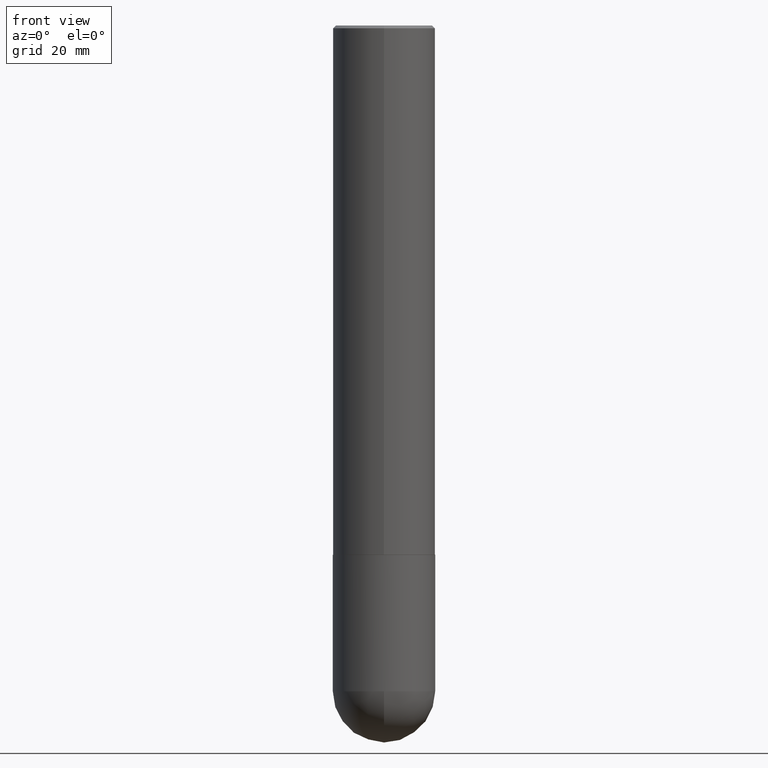
[diagram: clean part render]
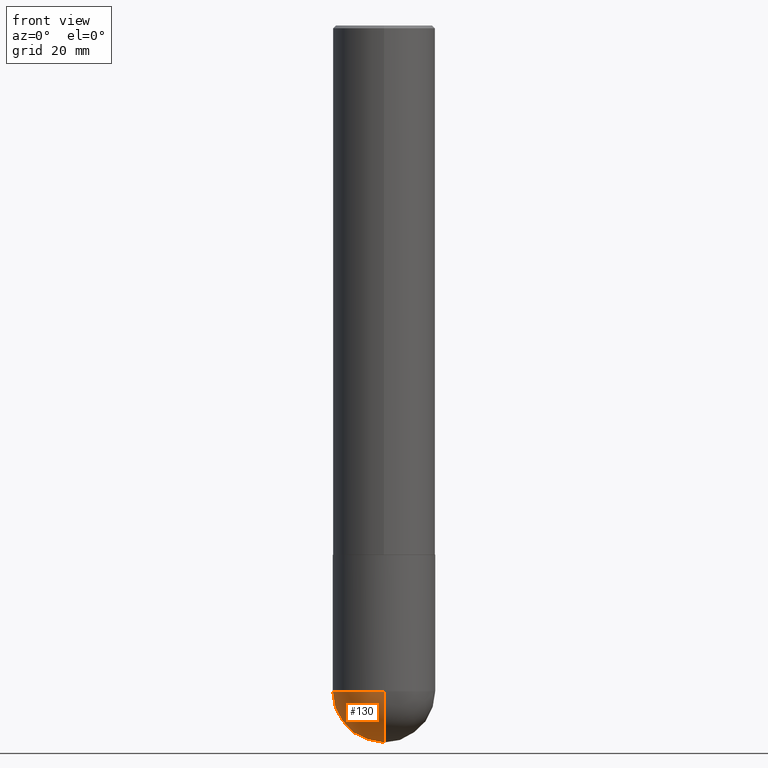
[diagram: same view with one face highlighted and labeled with its STEP entity id]
A machine part, front view. The second image highlights one B-rep face of the part: STEP entity #130.
In plain terms, the highlighted spherical surface has radius 9.525 mm.
Its self-contained STEP definition (entity closure, byte-faithful):
#5 = CARTESIAN_POINT ( 'NONE',  ( 1.159054065223865578E-28, -1.749515389500038536E-14, -4.875000000000000000 ) ) ;
#13 = FACE_OUTER_BOUND ( 'NONE', #398, .T. ) ;
#14 = CIRCLE ( 'NONE', #156, 0.3750000000000001110 ) ;
#35 = DIRECTION ( 'NONE',  ( 6.982962677686265922E-15, 1.000000000000000000, 0.000000000000000000 ) ) ;
#44 = AXIS2_PLACEMENT_3D ( 'NONE', #5, #225, #261 ) ;
#51 = CARTESIAN_POINT ( 'NONE',  ( 1.192166043015254091E-28, -1.702097152686033664E-14, -4.875000000000000000 ) ) ;
#58 = EDGE_CURVE ( 'NONE', #69, #265, #259, .T. ) ;
#63 = VERTEX_POINT ( 'NONE', #407 ) ;
#67 = SPHERICAL_SURFACE ( 'NONE', #278, 0.3750000000000001110 ) ;
#69 = VERTEX_POINT ( 'NONE', #255 ) ;
#75 = ORIENTED_EDGE ( 'NONE', *, *, #302, .F. ) ;
#81 = DIRECTION ( 'NONE',  ( -2.445468806185136597E-29, 3.491481338843145583E-15, 1.000000000000000000 ) ) ;
#96 = ORIENTED_EDGE ( 'NONE', *, *, #173, .T. ) ;
#104 = CARTESIAN_POINT ( 'NONE',  ( 1.159054065223865578E-28, -1.749515389500038536E-14, -4.875000000000000000 ) ) ;
#120 = CARTESIAN_POINT ( 'NONE',  ( -2.664535259100258157E-15, -0.3750000000000173195, -4.874999999999999112 ) ) ;
#130 = ADVANCED_FACE ( 'NONE', ( #13 ), #67, .T. ) ;
#155 = CARTESIAN_POINT ( 'NONE',  ( 1.159054065223865578E-28, -1.749515389500038536E-14, -4.875000000000000000 ) ) ;
#156 = AXIS2_PLACEMENT_3D ( 'NONE', #366, #204, #280 ) ;
#173 = EDGE_CURVE ( 'NONE', #63, #229, #213, .T. ) ;
#204 = DIRECTION ( 'NONE',  ( -2.445468806185136597E-29, 3.491481338843145583E-15, 1.000000000000000000 ) ) ;
#208 = DIRECTION ( 'NONE',  ( 1.000000000000000000, -6.982962677686260400E-15, 0.000000000000000000 ) ) ;
#213 = CIRCLE ( 'NONE', #44, 0.3750000000000001110 ) ;
#219 = ORIENTED_EDGE ( 'NONE', *, *, #58, .F. ) ;
#225 = DIRECTION ( 'NONE',  ( -1.000000000000000000, 7.105427357601001070E-15, -4.926315508542082329E-29 ) ) ;
#229 = VERTEX_POINT ( 'NONE', #120 ) ;
#231 = AXIS2_PLACEMENT_3D ( 'NONE', #51, #81, #208 ) ;
#255 = CARTESIAN_POINT ( 'NONE',  ( 2.618611004132467951E-15, 0.3749999999999829026, -4.875000000000001776 ) ) ;
#259 = CIRCLE ( 'NONE', #231, 0.3750000000000001110 ) ;
#261 = DIRECTION ( 'NONE',  ( -7.105427357601001070E-15, -1.000000000000000000, 0.000000000000000000 ) ) ;
#265 = VERTEX_POINT ( 'NONE', #349 ) ;
#268 = DIRECTION ( 'NONE',  ( -1.000000000000000000, 6.982962677686265922E-15, -4.883557194083112340E-29 ) ) ;
#271 = CIRCLE ( 'NONE', #317, 0.3750000000000001110 ) ;
#275 = ORIENTED_EDGE ( 'NONE', *, *, #286, .F. ) ;
#278 = AXIS2_PLACEMENT_3D ( 'NONE', #104, #268, #397 ) ;
#280 = DIRECTION ( 'NONE',  ( 1.000000000000000000, -6.982962677686260400E-15, 0.000000000000000000 ) ) ;
#286 = EDGE_CURVE ( 'NONE', #63, #69, #271, .T. ) ;
#302 = EDGE_CURVE ( 'NONE', #265, #229, #14, .T. ) ;
#317 = AXIS2_PLACEMENT_3D ( 'NONE', #155, #355, #35 ) ;
#349 = CARTESIAN_POINT ( 'NONE',  ( -0.3750000000000001110, -1.261069559833838637E-14, -4.875000000000000000 ) ) ;
#355 = DIRECTION ( 'NONE',  ( 1.000000000000000000, -6.982962677686265922E-15, 4.883557194083112340E-29 ) ) ;
#366 = CARTESIAN_POINT ( 'NONE',  ( 1.192166043015254091E-28, -1.702097152686033664E-14, -4.875000000000000000 ) ) ;
#397 = DIRECTION ( 'NONE',  ( 6.982962677686265922E-15, 1.000000000000000000, -2.913971193241879977E-15 ) ) ;
#398 = EDGE_LOOP ( 'NONE', ( #275, #96, #75, #219 ) ) ;
#407 = CARTESIAN_POINT ( 'NONE',  ( 1.252362582248019568E-28, -1.878149726958255384E-14, -5.250000000000000000 ) ) ;